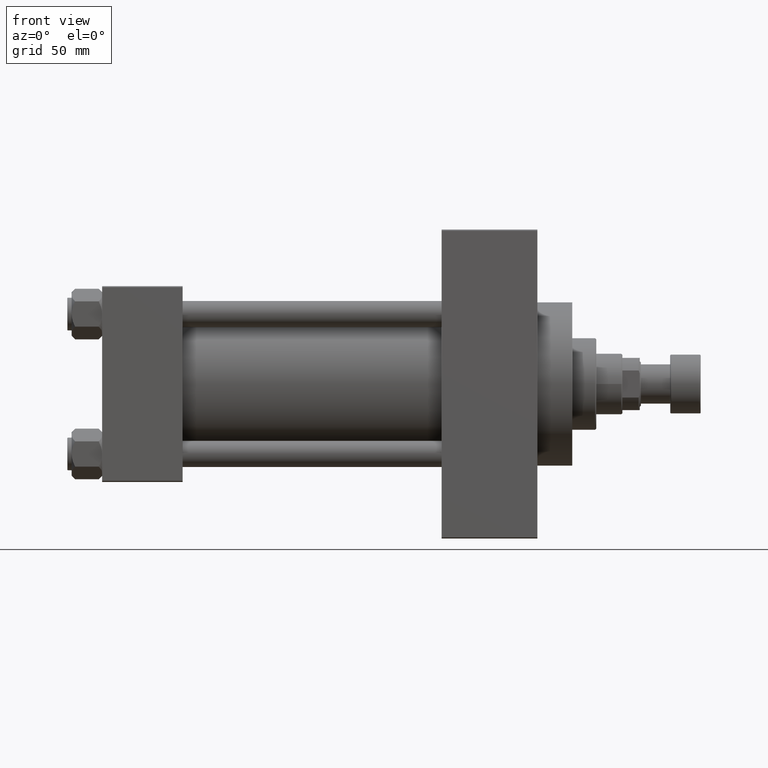
[diagram: clean part render]
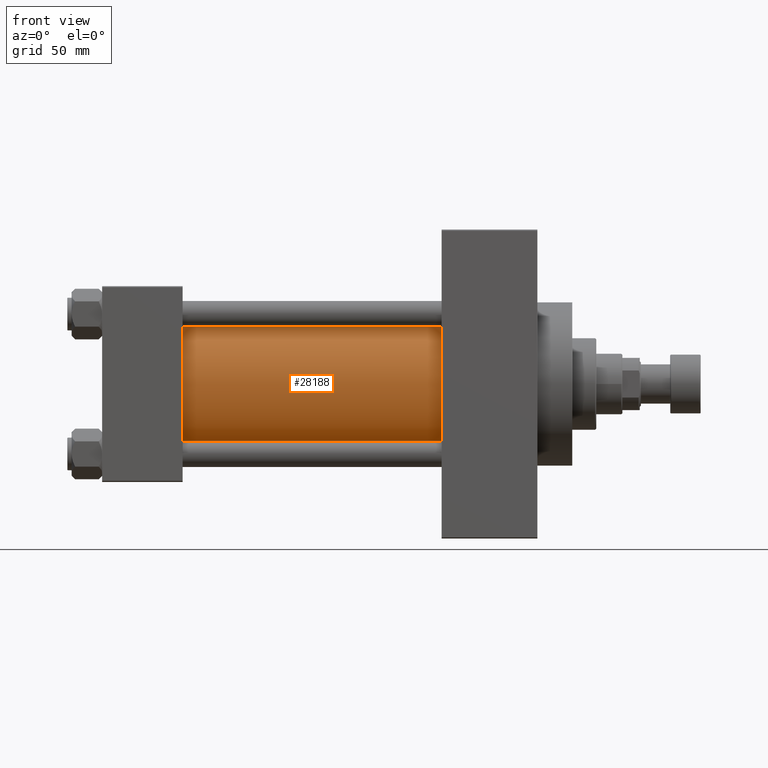
[diagram: same view with one face highlighted and labeled with its STEP entity id]
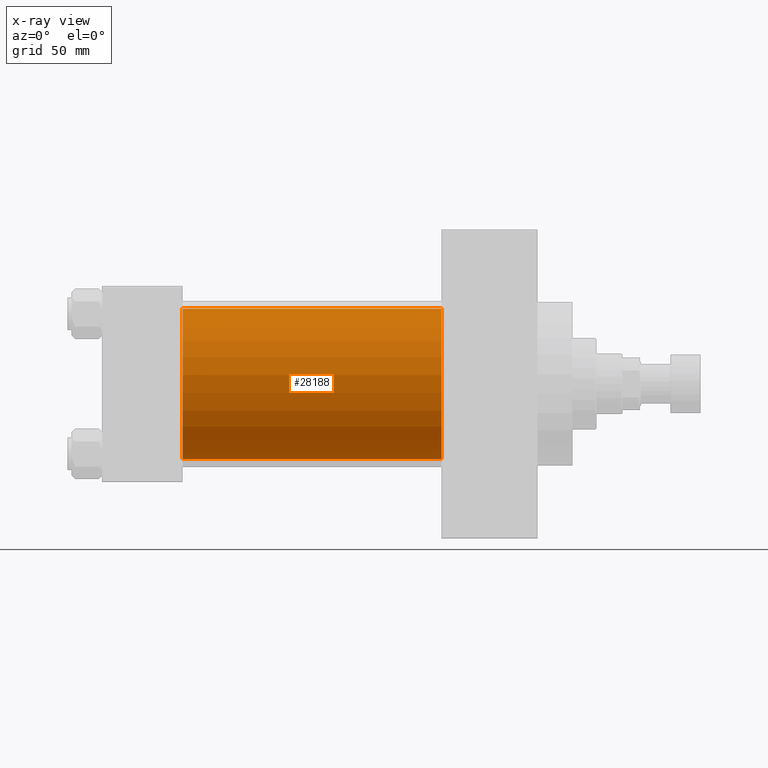
[diagram: x-ray of the same camera — body ghosted, the highlighted face saturated]
A machine part, front view. The second image highlights one B-rep face of the part: STEP entity #28188.
The next image is the same camera in x-ray: the body ghosted, the highlighted face saturated — about 1% of this face is hidden behind the body in this view.
In plain terms, the highlighted cylindrical surface (partial cylindrical patch) has radius 34.5 mm, axis along (-1, -0, -0).
Its self-contained STEP definition (entity closure, byte-faithful):
#2058 = DIRECTION ( 'NONE',  ( 0.000000000000000000, 0.000000000000000000, 1.000000000000000000 ) ) ;
#2922 = VERTEX_POINT ( 'NONE', #33240 ) ;
#3507 = CARTESIAN_POINT ( 'NONE',  ( 156.0000000000000000, -2.602085213965210642E-15, 0.000000000000000000 ) ) ;
#3776 = ORIENTED_EDGE ( 'NONE', *, *, #16314, .T. ) ;
#6888 = FACE_OUTER_BOUND ( 'NONE', #37271, .T. ) ;
#9463 = CARTESIAN_POINT ( 'NONE',  ( 156.0000000000000000, -2.602085213965210642E-15, 34.50000000000000000 ) ) ;
#11906 = CARTESIAN_POINT ( 'NONE',  ( 156.0000000000000000, -2.602085213965210642E-15, 34.50000000000000000 ) ) ;
#12493 = AXIS2_PLACEMENT_3D ( 'NONE', #17186, #27814, #46124 ) ;
#13610 = VERTEX_POINT ( 'NONE', #13829 ) ;
#13829 = CARTESIAN_POINT ( 'NONE',  ( 37.00000000000000711, -2.602085213965210642E-15, 34.50000000000000000 ) ) ;
#16153 = LINE ( 'NONE', #24848, #19750 ) ;
#16222 = AXIS2_PLACEMENT_3D ( 'NONE', #20385, #45706, #2058 ) ;
#16314 = EDGE_CURVE ( 'NONE', #13610, #2922, #37038, .T. ) ;
#17186 = CARTESIAN_POINT ( 'NONE',  ( 156.0000000000000000, -2.602085213965210642E-15, 0.000000000000000000 ) ) ;
#18619 = ORIENTED_EDGE ( 'NONE', *, *, #27323, .F. ) ;
#19750 = VECTOR ( 'NONE', #25080, 1000.000000000000000 ) ;
#20385 = CARTESIAN_POINT ( 'NONE',  ( 37.00000000000000711, -2.602085213965210642E-15, 0.000000000000000000 ) ) ;
#22378 = VERTEX_POINT ( 'NONE', #9463 ) ;
#24051 = CIRCLE ( 'NONE', #12493, 34.50000000000000000 ) ;
#24848 = CARTESIAN_POINT ( 'NONE',  ( 156.0000000000000000, 1.622946243093158675E-15, -34.50000000000000000 ) ) ;
#25080 = DIRECTION ( 'NONE',  ( -1.000000000000000000, -0.000000000000000000, -0.000000000000000000 ) ) ;
#25459 = DIRECTION ( 'NONE',  ( -1.000000000000000000, -0.000000000000000000, -0.000000000000000000 ) ) ;
#27323 = EDGE_CURVE ( 'NONE', #32409, #2922, #16153, .T. ) ;
#27814 = DIRECTION ( 'NONE',  ( 1.000000000000000000, 0.000000000000000000, 0.000000000000000000 ) ) ;
#28188 = ADVANCED_FACE ( 'NONE', ( #6888 ), #35617, .T. ) ;
#29278 = VECTOR ( 'NONE', #47611, 1000.000000000000000 ) ;
#32409 = VERTEX_POINT ( 'NONE', #36500 ) ;
#32771 = ORIENTED_EDGE ( 'NONE', *, *, #40011, .T. ) ;
#33240 = CARTESIAN_POINT ( 'NONE',  ( 37.00000000000000711, 1.622946243093158675E-15, -34.50000000000000000 ) ) ;
#34632 = ORIENTED_EDGE ( 'NONE', *, *, #44893, .F. ) ;
#35617 = CYLINDRICAL_SURFACE ( 'NONE', #47481, 34.50000000000000000 ) ;
#36500 = CARTESIAN_POINT ( 'NONE',  ( 156.0000000000000000, 1.622946243093158675E-15, -34.50000000000000000 ) ) ;
#37038 = CIRCLE ( 'NONE', #16222, 34.50000000000000000 ) ;
#37271 = EDGE_LOOP ( 'NONE', ( #18619, #34632, #32771, #3776 ) ) ;
#40011 = EDGE_CURVE ( 'NONE', #22378, #13610, #41095, .T. ) ;
#41095 = LINE ( 'NONE', #11906, #29278 ) ;
#44011 = DIRECTION ( 'NONE',  ( 0.000000000000000000, 0.000000000000000000, 1.000000000000000000 ) ) ;
#44893 = EDGE_CURVE ( 'NONE', #22378, #32409, #24051, .T. ) ;
#45706 = DIRECTION ( 'NONE',  ( 1.000000000000000000, -0.000000000000000000, 0.000000000000000000 ) ) ;
#46124 = DIRECTION ( 'NONE',  ( 0.000000000000000000, 0.000000000000000000, -1.000000000000000000 ) ) ;
#47481 = AXIS2_PLACEMENT_3D ( 'NONE', #3507, #25459, #44011 ) ;
#47611 = DIRECTION ( 'NONE',  ( -1.000000000000000000, -0.000000000000000000, -0.000000000000000000 ) ) ;